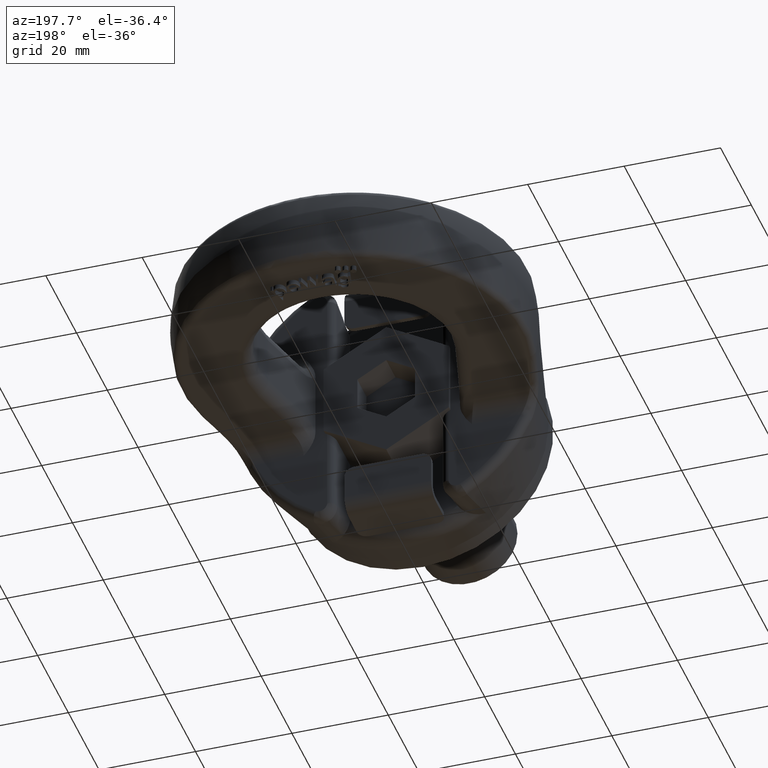
[diagram: clean part render]
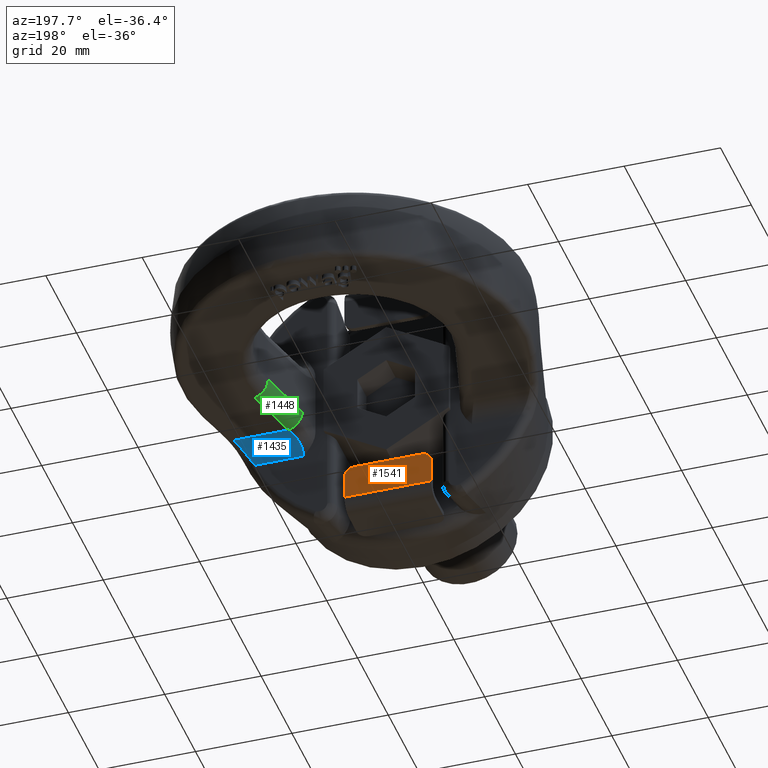
[diagram: same view with three faces highlighted in distinct colors, each labeled with its STEP entity id]
A machine part, auxiliary view with three faces highlighted in distinct colors.
Their STEP definitions:

[orange] entity #1541 — the highlighted planar face has unit normal (0, -1, 0).
#1302=FACE_OUTER_BOUND('',#2079,.T.);
#1541=ADVANCED_FACE('',(#1302),#1664,.F.);
#1664=PLANE('',#5373);
#1752=CIRCLE('',#5371,2.);
#1753=CIRCLE('',#5372,2.);
#2079=EDGE_LOOP('',(#3846,#3847,#3848,#3849,#3850,#3851));
#2347=LINE('',#9627,#2683);
#2355=LINE('',#9649,#2691);
#2360=LINE('',#9662,#2696);
#2364=LINE('',#9676,#2700);
#2683=VECTOR('',#6181,1.);
#2691=VECTOR('',#6197,1.);
#2696=VECTOR('',#6206,1.);
#2700=VECTOR('',#6228,1.);
#3846=ORIENTED_EDGE('',*,*,#4840,.T.);
#3847=ORIENTED_EDGE('',*,*,#4848,.T.);
#3848=ORIENTED_EDGE('',*,*,#4834,.T.);
#3849=ORIENTED_EDGE('',*,*,#4849,.F.);
#3850=ORIENTED_EDGE('',*,*,#4824,.F.);
#3851=ORIENTED_EDGE('',*,*,#4850,.T.);
#4248=VERTEX_POINT('',#9626);
#4249=VERTEX_POINT('',#9628);
#4258=VERTEX_POINT('',#9648);
#4259=VERTEX_POINT('',#9650);
#4264=VERTEX_POINT('',#9661);
#4265=VERTEX_POINT('',#9663);
#4824=EDGE_CURVE('',#4248,#4249,#2347,.T.);
#4834=EDGE_CURVE('',#4259,#4258,#2355,.T.);
#4840=EDGE_CURVE('',#4265,#4264,#2360,.T.);
#4848=EDGE_CURVE('',#4264,#4259,#1752,.T.);
#4849=EDGE_CURVE('',#4249,#4258,#2364,.T.);
#4850=EDGE_CURVE('',#4248,#4265,#1753,.T.);
#5371=AXIS2_PLACEMENT_3D('',#9675,#6226,#6227);
#5372=AXIS2_PLACEMENT_3D('',#9677,#6229,#6230);
#5373=AXIS2_PLACEMENT_3D('',#9678,#6231,#6232);
#6181=DIRECTION('',(2.34291072916505E-15,0.,-1.));
#6197=DIRECTION('',(2.34291072916505E-15,0.,-1.));
#6206=DIRECTION('',(1.,0.,2.34291072916505E-15));
#6226=DIRECTION('',(0.,1.,0.));
#6227=DIRECTION('',(-2.16840434497101E-15,0.,0.999999999999999));
#6228=DIRECTION('',(1.,0.,2.34291072916505E-15));
#6229=DIRECTION('',(0.,1.,0.));
#6230=DIRECTION('',(-2.16840434497101E-15,0.,0.999999999999999));
#6231=DIRECTION('',(0.,-1.,0.));
#6232=DIRECTION('',(-2.34361141604467E-15,0.,1.));
#9626=CARTESIAN_POINT('',(-8.99999999999996,23.,-19.));
#9627=CARTESIAN_POINT('',(-8.99999999999996,23.,-17.));
#9628=CARTESIAN_POINT('',(-8.99999999999994,23.,-24.));
#9648=CARTESIAN_POINT('',(9.00000000000006,23.,-24.));
#9649=CARTESIAN_POINT('',(9.00000000000004,23.,-17.));
#9650=CARTESIAN_POINT('',(9.00000000000005,23.,-19.));
#9661=CARTESIAN_POINT('',(7.00000000000004,23.,-17.));
#9662=CARTESIAN_POINT('',(-8.99999999999996,23.,-17.));
#9663=CARTESIAN_POINT('',(-6.99999999999996,23.,-17.));
#9675=CARTESIAN_POINT('',(7.00000000000005,23.,-19.));
#9676=CARTESIAN_POINT('',(-8.99999999999994,23.,-24.));
#9677=CARTESIAN_POINT('',(-6.99999999999996,23.,-19.));
#9678=CARTESIAN_POINT('',(-8.99999999999996,23.,-17.));

[blue] entity #1435 — the highlighted cylindrical surface (edge-blend (fillet) strip) has radius 4 mm, axis along (1, 0, 0).
#1055=ELLIPSE('',#5263,4.40919021747408,4.);
#1069=CYLINDRICAL_SURFACE('',#5264,4.);
#1203=FACE_OUTER_BOUND('',#1966,.T.);
#1435=ADVANCED_FACE('',(#1203),#1069,.F.);
#1966=EDGE_LOOP('',(#3381,#3382,#3383,#3384));
#2145=LINE('',#6714,#2425);
#2244=LINE('',#8234,#2552);
#2425=VECTOR('',#5473,1.);
#2552=VECTOR('',#5834,1.);
#3381=ORIENTED_EDGE('',*,*,#4366,.F.);
#3382=ORIENTED_EDGE('',*,*,#4646,.T.);
#3383=ORIENTED_EDGE('',*,*,#4606,.F.);
#3384=ORIENTED_EDGE('',*,*,#4647,.T.);
#3976=VERTEX_POINT('',#6713);
#3977=VERTEX_POINT('',#6715);
#4123=VERTEX_POINT('',#8233);
#4124=VERTEX_POINT('',#8235);
#4366=EDGE_CURVE('',#3976,#3977,#2145,.T.);
#4606=EDGE_CURVE('',#4123,#4124,#2244,.T.);
#4646=EDGE_CURVE('',#3976,#4124,#1055,.T.);
#4647=EDGE_CURVE('',#4123,#3977,#5025,.T.);
#5025=B_SPLINE_CURVE_WITH_KNOTS('',3,(#8490,#8491,#8492,#8493,#8494,#8495,
#8496,#8497,#8498,#8499,#8500,#8501,#8502,#8503,#8504,#8505),
 .UNSPECIFIED.,.F.,.F.,(4,3,3,3,3,4),(0.,0.213429901587559,0.429077872995629,
0.653447496785716,0.886879115819184,1.),.UNSPECIFIED.);
#5263=AXIS2_PLACEMENT_3D('',#8489,#5881,#5882);
#5264=AXIS2_PLACEMENT_3D('',#8506,#5883,#5884);
#5473=DIRECTION('',(1.,0.,2.34291072916505E-15));
#5834=DIRECTION('',(-1.,0.,-2.34291072916505E-15));
#5881=DIRECTION('',(-0.907196061568763,0.420708100556817,-2.12547938610573E-15));
#5882=DIRECTION('',(0.420708100556817,0.907196061568763,9.85681522641215E-16));
#5883=DIRECTION('',(1.,0.,2.34291072916505E-15));
#5884=DIRECTION('',(2.16840434497101E-15,0.,-1.));
#6713=CARTESIAN_POINT('',(17.4651606840931,23.,-12.));
#6714=CARTESIAN_POINT('',(14.9851008946631,23.,-12.));
#6715=CARTESIAN_POINT('',(27.5917285107315,23.,-11.9999999999999));
#8233=CARTESIAN_POINT('',(30.8746750479564,27.,-7.99999999999994));
#8234=CARTESIAN_POINT('',(-73.,27.,-8.00000000000018));
#8235=CARTESIAN_POINT('',(19.3201427254803,27.,-7.99999999999996));
#8489=CARTESIAN_POINT('',(19.3201427254803,27.,-12.));
#8490=CARTESIAN_POINT('',(30.8746750479564,27.,-7.99999999999994));
#8491=CARTESIAN_POINT('',(30.7009816956053,26.5284668280573,-7.99999999999994));
#8492=CARTESIAN_POINT('',(30.5037721020732,26.0590399968509,-8.08541479152705));
#8493=CARTESIAN_POINT('',(30.2960948742114,25.6291664791271,-8.2422326498236));
#8494=CARTESIAN_POINT('',(30.0860788399747,25.194451838792,-8.40081654963783));
#8495=CARTESIAN_POINT('',(29.8596443591767,24.7890163271301,-8.63622502244858));
#8496=CARTESIAN_POINT('',(29.6255471461635,24.4422432447784,-8.92463329322849));
#8497=CARTESIAN_POINT('',(29.382003263782,24.081476614137,-9.22467988102229));
#8498=CARTESIAN_POINT('',(29.1238729292483,23.7755296780196,-9.58902876464578));
#8499=CARTESIAN_POINT('',(28.8602387428482,23.5446732932154,-9.98487783264108));
#8500=CARTESIAN_POINT('',(28.5860065094746,23.3045365231785,-10.3966399621187));
#8501=CARTESIAN_POINT('',(28.2989751426258,23.1396690781684,-10.8518533285952));
#8502=CARTESIAN_POINT('',(28.0125813013697,23.059199399209,-11.3143684482134));
#8503=CARTESIAN_POINT('',(27.8725472064393,23.0198532365507,-11.5405181652717));
#8504=CARTESIAN_POINT('',(27.7315671690266,23.,-11.7703339110128));
#8505=CARTESIAN_POINT('',(27.5917285107315,23.,-11.9999999999999));
#8506=CARTESIAN_POINT('',(14.9851008946631,27.,-12.));

[green] entity #1448 — the highlighted cylindrical surface (edge-blend (fillet) strip) has radius 3.2 mm, axis along (-0.2495, -0.9684, -0).
#1072=CYLINDRICAL_SURFACE('',#5282,3.2);
#1216=FACE_OUTER_BOUND('',#1979,.T.);
#1448=ADVANCED_FACE('',(#1216),#1072,.T.);
#1725=CIRCLE('',#5280,3.2);
#1726=CIRCLE('',#5281,3.2);
#1979=EDGE_LOOP('',(#3433,#3434,#3435,#3436));
#2154=LINE('',#6880,#2434);
#2245=LINE('',#8236,#2553);
#2434=VECTOR('',#5526,1.);
#2553=VECTOR('',#5835,1.);
#3433=ORIENTED_EDGE('',*,*,#4658,.F.);
#3434=ORIENTED_EDGE('',*,*,#4405,.F.);
#3435=ORIENTED_EDGE('',*,*,#4659,.T.);
#3436=ORIENTED_EDGE('',*,*,#4607,.F.);
#4003=VERTEX_POINT('',#6862);
#4010=VERTEX_POINT('',#6881);
#4117=VERTEX_POINT('',#8216);
#4124=VERTEX_POINT('',#8235);
#4405=EDGE_CURVE('',#4003,#4010,#2154,.T.);
#4607=EDGE_CURVE('',#4124,#4117,#2245,.T.);
#4658=EDGE_CURVE('',#4010,#4124,#1725,.T.);
#4659=EDGE_CURVE('',#4003,#4117,#1726,.T.);
#5280=AXIS2_PLACEMENT_3D('',#8636,#5915,#5916);
#5281=AXIS2_PLACEMENT_3D('',#8655,#5917,#5918);
#5282=AXIS2_PLACEMENT_3D('',#8656,#5919,#5920);
#5526=DIRECTION('',(-0.249489301818012,-0.968377554613055,-7.0805081480575E-16));
#5835=DIRECTION('',(0.249489301818012,0.968377554613055,7.0805081480575E-16));
#5915=DIRECTION('',(-0.249489301818012,-0.968377554613056,4.65385886456359E-16));
#5916=DIRECTION('',(0.968377554613055,-0.249489301818012,2.16840434497101E-15));
#5917=DIRECTION('',(-0.249489301818013,-0.968377554613055,-5.8453116204132E-16));
#5918=DIRECTION('',(0.968377554613055,-0.249489301818013,2.16840434497101E-15));
#5919=DIRECTION('',(-0.249489301818012,-0.968377554613055,-7.0805081480575E-16));
#5920=DIRECTION('',(-0.968377554613055,0.249489301818013,-2.16840434497101E-15));
#6862=CARTESIAN_POINT('',(19.3675510922611,40.0102139636398,-4.79999999999996));
#6880=CARTESIAN_POINT('',(16.0156464732115,27.,-4.79999999999997));
#6881=CARTESIAN_POINT('',(16.2213345507185,27.7983657658176,-4.79999999999997));
#8216=CARTESIAN_POINT('',(22.4663592670229,39.2118481978221,-7.99999999999995));
#8235=CARTESIAN_POINT('',(19.3201427254803,27.,-7.99999999999996));
#8236=CARTESIAN_POINT('',(22.4663592670229,39.2118481978221,-7.99999999999995));
#8636=CARTESIAN_POINT('',(19.3201427254803,27.,-4.79999999999996));
#8655=CARTESIAN_POINT('',(22.4663592670229,39.2118481978221,-4.79999999999995));
#8656=CARTESIAN_POINT('',(29.0360733511889,64.7117939388716,-4.79999999999994));